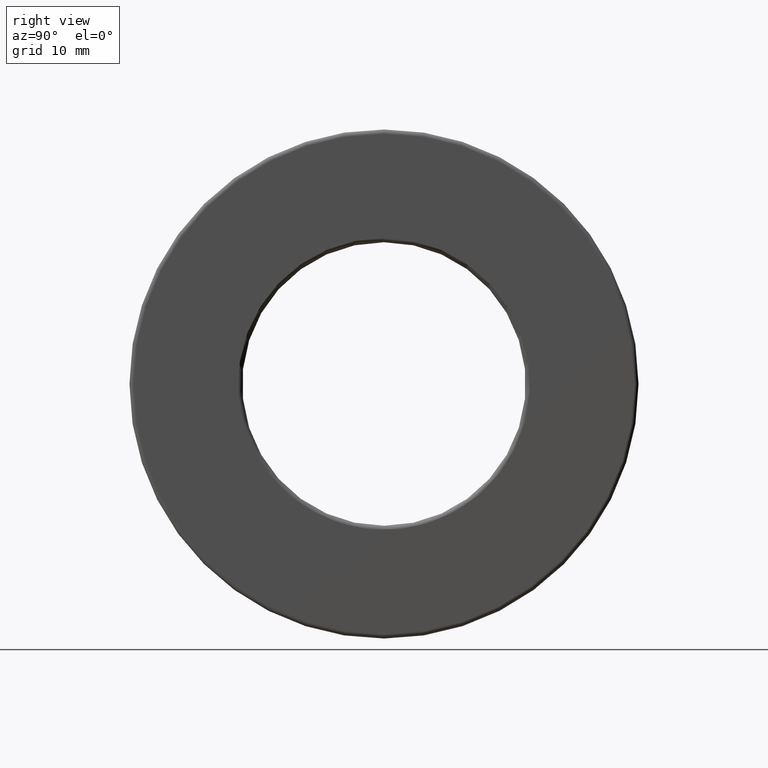
[diagram: clean part render]
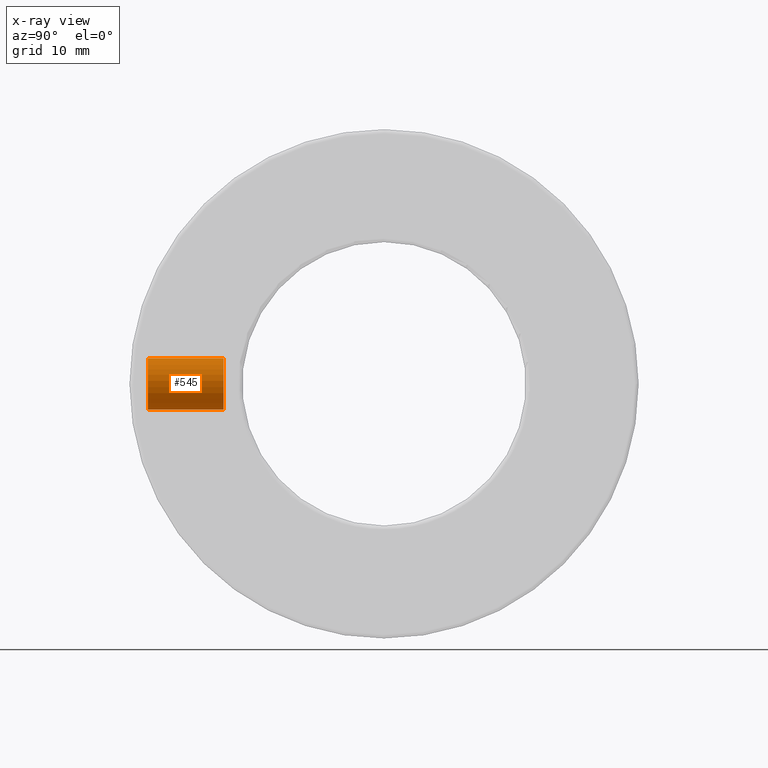
[diagram: x-ray — body ghosted, one internal face saturated and labeled with its STEP entity id]
A machine part, right view, then the same camera in x-ray: the body is ghosted and one INTERNAL B-rep face — a face not visible from any outside direction — is saturated and labeled: STEP entity #545.
In plain terms, the highlighted cylindrical surface (bore or boss wall) has radius 3.175 mm, axis along (0, -1, 0).
Its self-contained STEP definition (entity closure, byte-faithful):
#14 = EDGE_CURVE ( 'NONE', #1072, #1072, #736, .T. ) ;
#143 = ORIENTED_EDGE ( 'NONE', *, *, #14, .T. ) ;
#204 = CIRCLE ( 'NONE', #1214, 0.1249999999999999300 ) ;
#297 = FACE_OUTER_BOUND ( 'NONE', #1295, .T. ) ;
#328 = DIRECTION ( 'NONE',  ( 0.0000000000000000000, -1.000000000000000000, 0.0000000000000000000 ) ) ;
#331 = EDGE_CURVE ( 'NONE', #1087, #1087, #204, .T. ) ;
#374 = CARTESIAN_POINT ( 'NONE',  ( 0.0000000000000000000, -1.144374999999999700, -0.1249999999999999300 ) ) ;
#391 = CARTESIAN_POINT ( 'NONE',  ( 0.0000000000000000000, 0.0000000000000000000, 0.0000000000000000000 ) ) ;
#545 = ADVANCED_FACE ( 'NONE', ( #1112, #297 ), #954, .T. ) ;
#570 = AXIS2_PLACEMENT_3D ( 'NONE', #391, #623, #1396 ) ;
#594 = DIRECTION ( 'NONE',  ( 0.0000000000000000000, -1.000000000000000000, 0.0000000000000000000 ) ) ;
#623 = DIRECTION ( 'NONE',  ( 0.0000000000000000000, -1.000000000000000000, 0.0000000000000000000 ) ) ;
#699 = CARTESIAN_POINT ( 'NONE',  ( 0.0000000000000000000, -1.144374999999999700, 0.0000000000000000000 ) ) ;
#708 = AXIS2_PLACEMENT_3D ( 'NONE', #997, #328, #1103 ) ;
#736 = CIRCLE ( 'NONE', #708, 0.1250000000000000300 ) ;
#948 = EDGE_LOOP ( 'NONE', ( #143 ) ) ;
#954 = CYLINDRICAL_SURFACE ( 'NONE', #570, 0.1249999999999999900 ) ;
#997 = CARTESIAN_POINT ( 'NONE',  ( 0.0000000000000000000, -0.7775000000000000800, 0.0000000000000000000 ) ) ;
#1072 = VERTEX_POINT ( 'NONE', #1384 ) ;
#1087 = VERTEX_POINT ( 'NONE', #374 ) ;
#1103 = DIRECTION ( 'NONE',  ( 0.0000000000000000000, 0.0000000000000000000, -1.000000000000000000 ) ) ;
#1112 = FACE_OUTER_BOUND ( 'NONE', #948, .T. ) ;
#1149 = DIRECTION ( 'NONE',  ( 0.0000000000000000000, 0.0000000000000000000, -1.000000000000000000 ) ) ;
#1214 = AXIS2_PLACEMENT_3D ( 'NONE', #699, #594, #1149 ) ;
#1260 = ORIENTED_EDGE ( 'NONE', *, *, #331, .F. ) ;
#1295 = EDGE_LOOP ( 'NONE', ( #1260 ) ) ;
#1384 = CARTESIAN_POINT ( 'NONE',  ( 0.0000000000000000000, -0.7775000000000000800, -0.1250000000000000300 ) ) ;
#1396 = DIRECTION ( 'NONE',  ( 0.0000000000000000000, 0.0000000000000000000, -1.000000000000000000 ) ) ;